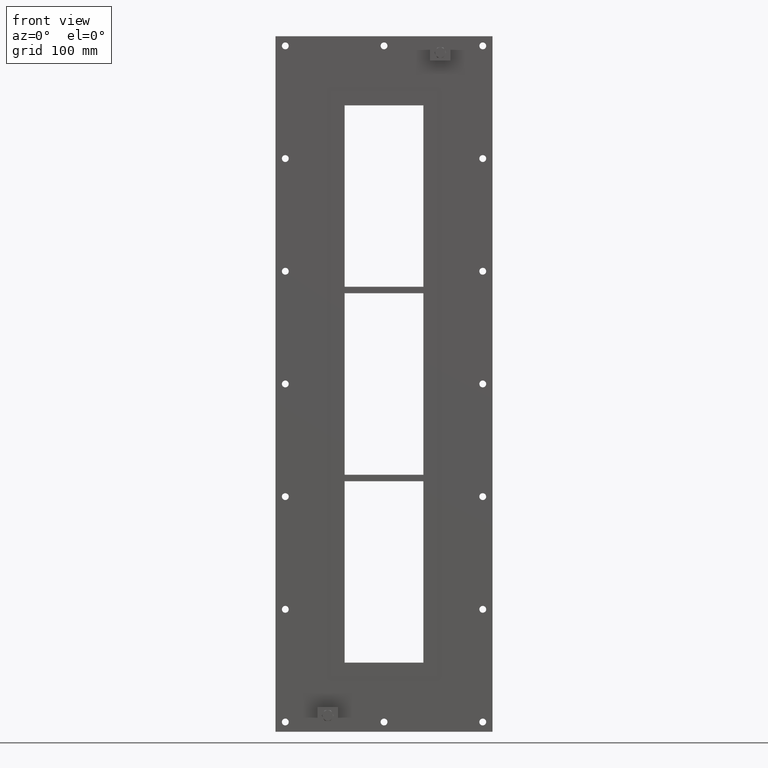
[diagram: clean part render]
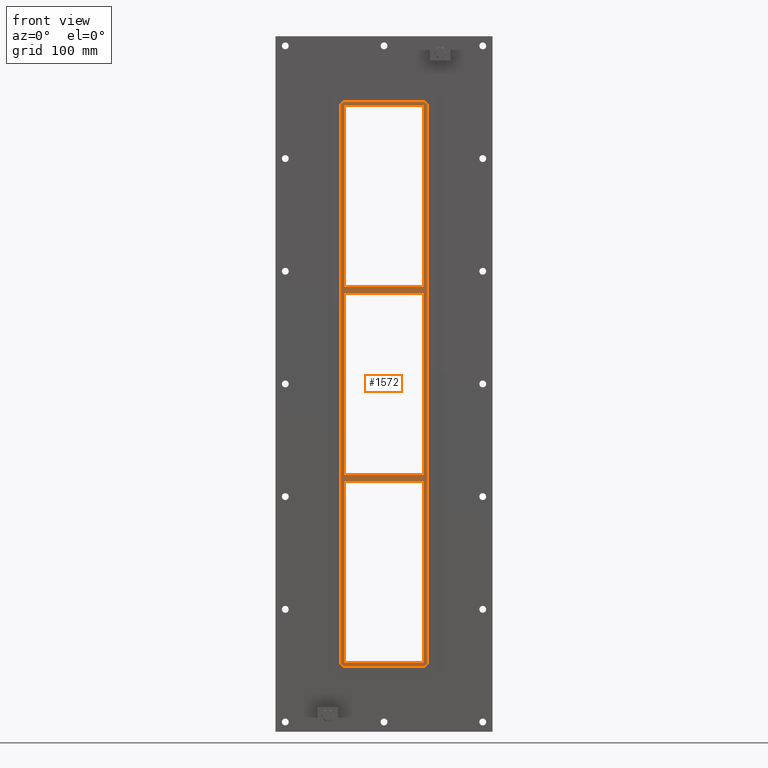
[diagram: same view with one face highlighted and labeled with its STEP entity id]
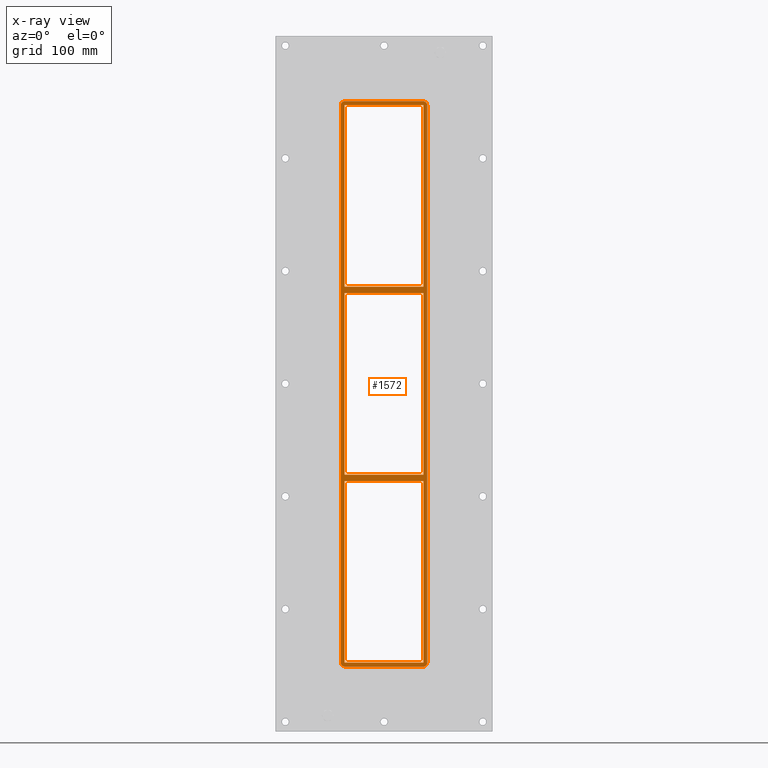
[diagram: x-ray of the same camera — body ghosted, the highlighted face saturated]
A machine part, front view. The second image highlights one B-rep face of the part: STEP entity #1572.
The next image is the same camera in x-ray: the body ghosted, the highlighted face saturated — about 0% of this face is hidden behind the body in this view.
In plain terms, the highlighted planar face has unit normal (0, 1, 0).
Its self-contained STEP definition (entity closure, byte-faithful):
#521=CARTESIAN_POINT('',(60.249999999996362,-3.0,138.99999999998906));
#522=VERTEX_POINT('',#521);
#523=CARTESIAN_POINT('',(-60.249999999997598,-3.0,138.99999999998772));
#524=VERTEX_POINT('',#523);
#525=CARTESIAN_POINT('',(60.249999999996362,-3.0,138.99999999998906));
#526=DIRECTION('',(-1.0,0.0,0.0));
#527=VECTOR('',#526,120.49999999999397);
#528=LINE('',#525,#527);
#529=EDGE_CURVE('',#522,#524,#528,.T.);
#561=CARTESIAN_POINT('',(-60.249999999997605,-3.0,148.99999999999909));
#562=VERTEX_POINT('',#561);
#563=CARTESIAN_POINT('',(60.249999999999218,-3.0,148.99999999999909));
#564=VERTEX_POINT('',#563);
#565=CARTESIAN_POINT('',(-60.249999999997605,-3.0,148.99999999999909));
#566=DIRECTION('',(1.0,0.0,0.0));
#567=VECTOR('',#566,120.49999999999683);
#568=LINE('',#565,#567);
#569=EDGE_CURVE('',#562,#564,#568,.T.);
#610=CARTESIAN_POINT('',(-60.25,-3.0,426.99999999999994));
#611=VERTEX_POINT('',#610);
#618=CARTESIAN_POINT('',(-60.249999999999993,-3.0,148.99999999999909));
#619=DIRECTION('',(0.0,0.0,1.0));
#620=VECTOR('',#619,278.00000000000085);
#621=LINE('',#618,#620);
#622=EDGE_CURVE('',#562,#611,#621,.T.);
#641=CARTESIAN_POINT('',(60.249999999999218,-3.0,-139.00000000000091));
#642=VERTEX_POINT('',#641);
#649=CARTESIAN_POINT('',(60.25,-3.0,138.99999999998903));
#650=DIRECTION('',(0.0,0.0,-1.0));
#651=VECTOR('',#650,277.99999999998994);
#652=LINE('',#649,#651);
#653=EDGE_CURVE('',#522,#642,#652,.T.);
#664=CARTESIAN_POINT('',(60.25,-3.0,426.99999999999994));
#665=VERTEX_POINT('',#664);
#666=CARTESIAN_POINT('',(60.25,-3.0,426.99999999999994));
#667=DIRECTION('',(0.0,0.0,-1.0));
#668=VECTOR('',#667,278.00000000000085);
#669=LINE('',#666,#668);
#670=EDGE_CURVE('',#665,#564,#669,.T.);
#694=CARTESIAN_POINT('',(60.249999999996362,-3.0,-149.00000000001094));
#695=VERTEX_POINT('',#694);
#696=CARTESIAN_POINT('',(-60.249999999997598,-3.0,-149.00000000001228));
#697=VERTEX_POINT('',#696);
#698=CARTESIAN_POINT('',(60.249999999996362,-3.0,-149.00000000001094));
#699=DIRECTION('',(-1.0,0.0,0.0));
#700=VECTOR('',#699,120.49999999999397);
#701=LINE('',#698,#700);
#702=EDGE_CURVE('',#695,#697,#701,.T.);
#734=CARTESIAN_POINT('',(-60.249999999997605,-3.0,-139.00000000000091));
#735=VERTEX_POINT('',#734);
#736=CARTESIAN_POINT('',(-60.249999999997605,-3.0,-139.00000000000091));
#737=DIRECTION('',(1.0,0.0,0.0));
#738=VECTOR('',#737,120.49999999999683);
#739=LINE('',#736,#738);
#740=EDGE_CURVE('',#735,#642,#739,.T.);
#766=CARTESIAN_POINT('',(-60.249999999999993,-3.0,-139.00000000000091));
#767=DIRECTION('',(0.0,0.0,1.0));
#768=VECTOR('',#767,277.99999999998863);
#769=LINE('',#766,#768);
#770=EDGE_CURVE('',#735,#524,#769,.T.);
#796=CARTESIAN_POINT('',(60.25,-3.0,-427.00000000000011));
#797=VERTEX_POINT('',#796);
#804=CARTESIAN_POINT('',(60.25,-3.0,-149.00000000001091));
#805=DIRECTION('',(0.0,0.0,-1.0));
#806=VECTOR('',#805,277.9999999999892);
#807=LINE('',#804,#806);
#808=EDGE_CURVE('',#695,#797,#807,.T.);
#1203=CARTESIAN_POINT('',(-60.25,-3.0,-427.00000000000011));
#1204=VERTEX_POINT('',#1203);
#1205=CARTESIAN_POINT('',(-60.249999999999993,-3.0,-427.00000000000011));
#1206=DIRECTION('',(0.0,0.0,1.0));
#1207=VECTOR('',#1206,277.99999999998784);
#1208=LINE('',#1205,#1207);
#1209=EDGE_CURVE('',#1204,#697,#1208,.T.);
#1234=CARTESIAN_POINT('',(66.25,-3.0,-426.99999999999994));
#1235=VERTEX_POINT('',#1234);
#1242=CARTESIAN_POINT('',(60.25,-3.0,-433.00000000000006));
#1243=VERTEX_POINT('',#1242);
#1244=CARTESIAN_POINT('',(60.25,-3.0,-427.0));
#1245=DIRECTION('',(0.0,1.0,0.0));
#1246=DIRECTION('',(0.707106781186551,0.0,-0.707106781186544));
#1247=AXIS2_PLACEMENT_3D('',#1244,#1245,#1246);
#1248=CIRCLE('',#1247,6.0);
#1249=EDGE_CURVE('',#1235,#1243,#1248,.T.);
#1299=CARTESIAN_POINT('',(-60.25,-3.0,-433.00000000000006));
#1300=VERTEX_POINT('',#1299);
#1301=CARTESIAN_POINT('',(-60.25,-3.0,-433.00000000000006));
#1302=DIRECTION('',(1.0,0.0,0.0));
#1303=VECTOR('',#1302,120.5);
#1304=LINE('',#1301,#1303);
#1305=EDGE_CURVE('',#1300,#1243,#1304,.T.);
#1346=CARTESIAN_POINT('',(66.25,-3.0,427.0));
#1347=VERTEX_POINT('',#1346);
#1354=CARTESIAN_POINT('',(66.25,-3.0,-426.99999999999994));
#1355=DIRECTION('',(0.0,0.0,1.0));
#1356=VECTOR('',#1355,854.0);
#1357=LINE('',#1354,#1356);
#1358=EDGE_CURVE('',#1235,#1347,#1357,.T.);
#1371=CARTESIAN_POINT('',(-66.25,-3.0,-427.0));
#1372=VERTEX_POINT('',#1371);
#1373=CARTESIAN_POINT('',(-60.25,-3.0,-427.0));
#1374=DIRECTION('',(0.0,1.0,0.0));
#1375=DIRECTION('',(-0.707106781186551,0.0,-0.707106781186544));
#1376=AXIS2_PLACEMENT_3D('',#1373,#1374,#1375);
#1377=CIRCLE('',#1376,6.0);
#1378=EDGE_CURVE('',#1300,#1372,#1377,.T.);
#1420=CARTESIAN_POINT('',(60.25,-3.0,433.00000000000006));
#1421=VERTEX_POINT('',#1420);
#1428=CARTESIAN_POINT('',(60.25,-3.0,427.0));
#1429=DIRECTION('',(0.0,1.0,0.0));
#1430=DIRECTION('',(0.707106781186551,0.0,0.707106781186544));
#1431=AXIS2_PLACEMENT_3D('',#1428,#1429,#1430);
#1432=CIRCLE('',#1431,6.0);
#1433=EDGE_CURVE('',#1421,#1347,#1432,.T.);
#1446=CARTESIAN_POINT('',(-66.25,-3.0,426.99999999999994));
#1447=VERTEX_POINT('',#1446);
#1448=CARTESIAN_POINT('',(-66.25,-3.0,426.99999999999994));
#1449=DIRECTION('',(0.0,0.0,-1.0));
#1450=VECTOR('',#1449,854.0);
#1451=LINE('',#1448,#1450);
#1452=EDGE_CURVE('',#1447,#1372,#1451,.T.);
#1493=CARTESIAN_POINT('',(-60.25,-3.0,433.00000000000006));
#1494=VERTEX_POINT('',#1493);
#1501=CARTESIAN_POINT('',(60.25,-3.0,433.00000000000006));
#1502=DIRECTION('',(-1.0,0.0,0.0));
#1503=VECTOR('',#1502,120.5);
#1504=LINE('',#1501,#1503);
#1505=EDGE_CURVE('',#1421,#1494,#1504,.T.);
#1518=CARTESIAN_POINT('',(-60.25,-3.0,427.0));
#1519=DIRECTION('',(0.0,1.0,0.0));
#1520=DIRECTION('',(-0.707106781186551,0.0,0.707106781186544));
#1521=AXIS2_PLACEMENT_3D('',#1518,#1519,#1520);
#1522=CIRCLE('',#1521,6.0);
#1523=EDGE_CURVE('',#1447,#1494,#1522,.T.);
#1529=CARTESIAN_POINT('',(0.0,-3.0,0.0));
#1530=DIRECTION('',(0.0,1.0,0.0));
#1531=DIRECTION('',(0.0,0.0,1.0));
#1532=AXIS2_PLACEMENT_3D('',#1529,#1530,#1531);
#1533=PLANE('',#1532);
#1534=ORIENTED_EDGE('',*,*,#1378,.F.);
#1535=ORIENTED_EDGE('',*,*,#1305,.T.);
#1536=ORIENTED_EDGE('',*,*,#1249,.F.);
#1537=ORIENTED_EDGE('',*,*,#1358,.T.);
#1538=ORIENTED_EDGE('',*,*,#1433,.F.);
#1539=ORIENTED_EDGE('',*,*,#1505,.T.);
#1540=ORIENTED_EDGE('',*,*,#1523,.F.);
#1541=ORIENTED_EDGE('',*,*,#1452,.T.);
#1542=EDGE_LOOP('',(#1534,#1535,#1536,#1537,#1538,#1539,#1540,#1541));
#1543=FACE_OUTER_BOUND('',#1542,.T.);
#1544=ORIENTED_EDGE('',*,*,#622,.T.);
#1545=CARTESIAN_POINT('',(-60.25,-3.0,427.0));
#1546=DIRECTION('',(1.0,0.0,0.0));
#1547=VECTOR('',#1546,120.5);
#1548=LINE('',#1545,#1547);
#1549=EDGE_CURVE('',#611,#665,#1548,.T.);
#1550=ORIENTED_EDGE('',*,*,#1549,.T.);
#1551=ORIENTED_EDGE('',*,*,#670,.T.);
#1552=ORIENTED_EDGE('',*,*,#569,.F.);
#1553=EDGE_LOOP('',(#1544,#1550,#1551,#1552));
#1554=FACE_BOUND('',#1553,.T.);
#1555=ORIENTED_EDGE('',*,*,#529,.F.);
#1556=ORIENTED_EDGE('',*,*,#653,.T.);
#1557=ORIENTED_EDGE('',*,*,#740,.F.);
#1558=ORIENTED_EDGE('',*,*,#770,.T.);
#1559=EDGE_LOOP('',(#1555,#1556,#1557,#1558));
#1560=FACE_BOUND('',#1559,.T.);
#1561=ORIENTED_EDGE('',*,*,#702,.F.);
#1562=ORIENTED_EDGE('',*,*,#808,.T.);
#1563=CARTESIAN_POINT('',(60.25,-3.0,-427.00000000000011));
#1564=DIRECTION('',(-1.0,0.0,0.0));
#1565=VECTOR('',#1564,120.50000000000001);
#1566=LINE('',#1563,#1565);
#1567=EDGE_CURVE('',#797,#1204,#1566,.T.);
#1568=ORIENTED_EDGE('',*,*,#1567,.T.);
#1569=ORIENTED_EDGE('',*,*,#1209,.T.);
#1570=EDGE_LOOP('',(#1561,#1562,#1568,#1569));
#1571=FACE_BOUND('',#1570,.T.);
#1572=ADVANCED_FACE('',(#1543,#1554,#1560,#1571),#1533,.F.);